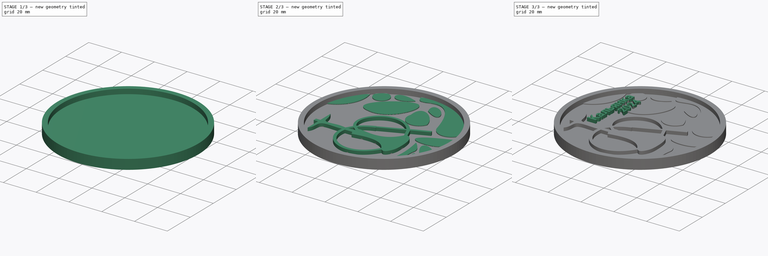
[diagram: build sequence overview — one tinted view per stage of 3, left to right]
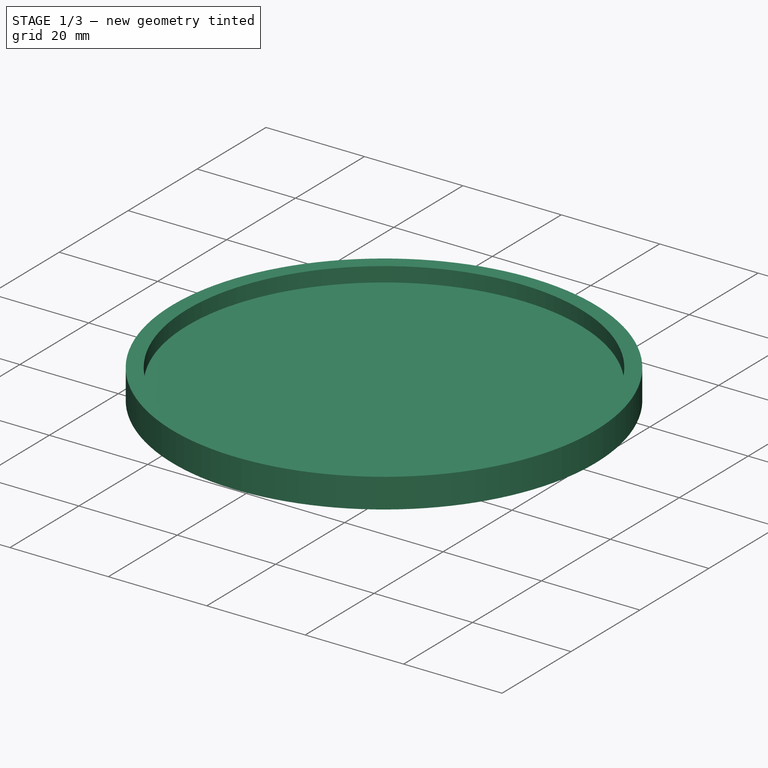
[diagram: stage 1 of 3 — iso view after this stage's code; geometry added in this stage tinted green]
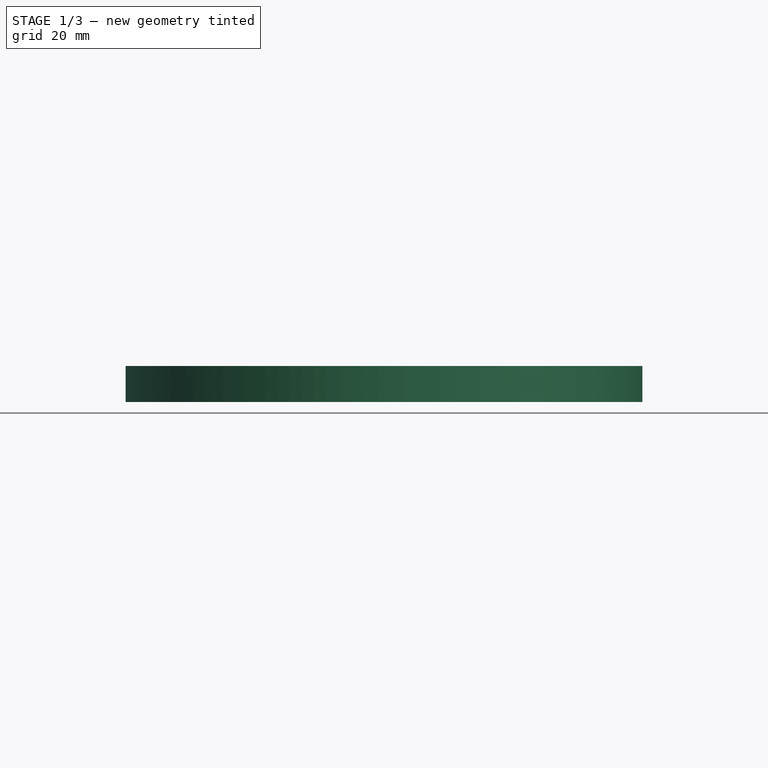
[diagram: stage 1 of 3 — front view after this stage's code; geometry added in this stage tinted green]
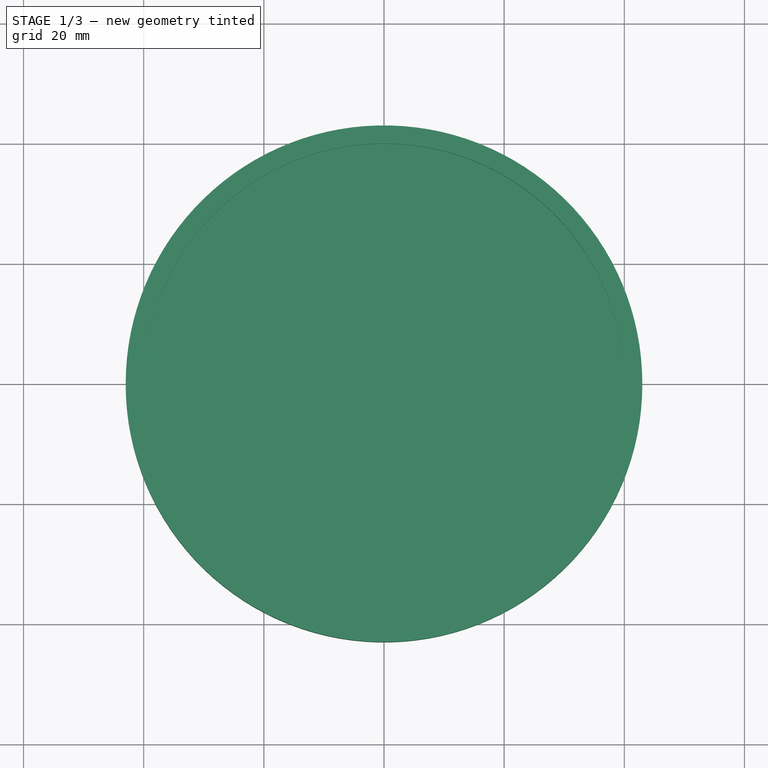
[diagram: stage 1 of 3 — top view after this stage's code; geometry added in this stage tinted green]
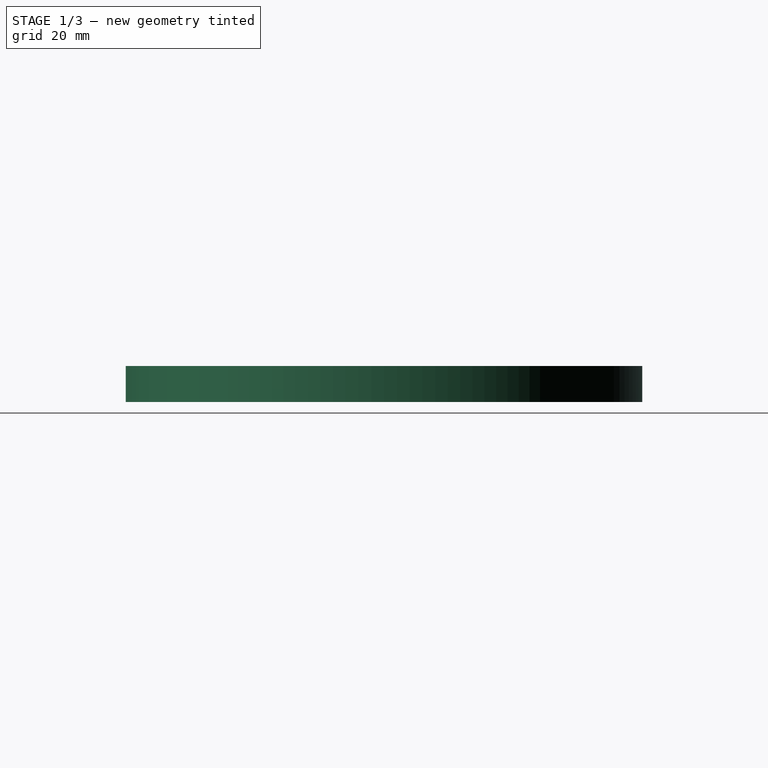
[diagram: stage 1 of 3 — right view after this stage's code; geometry added in this stage tinted green]
FCSTD DOCUMENT  (FreeCAD 0.21R33771 (Git))
Label: Медаль "Кольянка"
License: All rights reserved
LicenseURL: https://en.wikipedia.org/wiki/All_rights_reserved
objects: Sketcher::SketchObject×3, PartDesign::Pad×3, Part::Part2DObjectPython×2, Part::Extrusion×2, PartDesign::Thickness×1, PartDesign::Body×1, App::Part×1
note: 16 computed .brp shape members not serialized (recipe doc carries the construction recipe); baked Part::Feature solids carry a one-line shape summary decoded from their .brp

FEATURE [Sketcher::SketchObject] Sketch
  FullyConstrained = true
  MapMode = 5
  Support = -> [XY_Plane]
  sketch-geometry (1):
    g0: Circle CenterX=0 CenterY=0 CenterZ=0 NormalX=0 NormalY=0 NormalZ=1 AngleXU=0 Radius=40
  constraints (2):
    c: Coincident(g0,g-1)
    c: Diameter(g0) = 80
FEATURE [PartDesign::Pad] Pad
  Direction = (0,0,1)
  Length = 3
  Length2 = 10
  Profile = -> Sketch
  ReferenceAxis = -> Sketch [N_Axis]
  Type = 0
FEATURE [PartDesign::Thickness] Thickness
  Base = -> Pad [Face3]
  BaseFeature = -> Pad
  Intersection = false
  Join = 1
  Mode = 0
  SupportTransform = false
  Value = 3
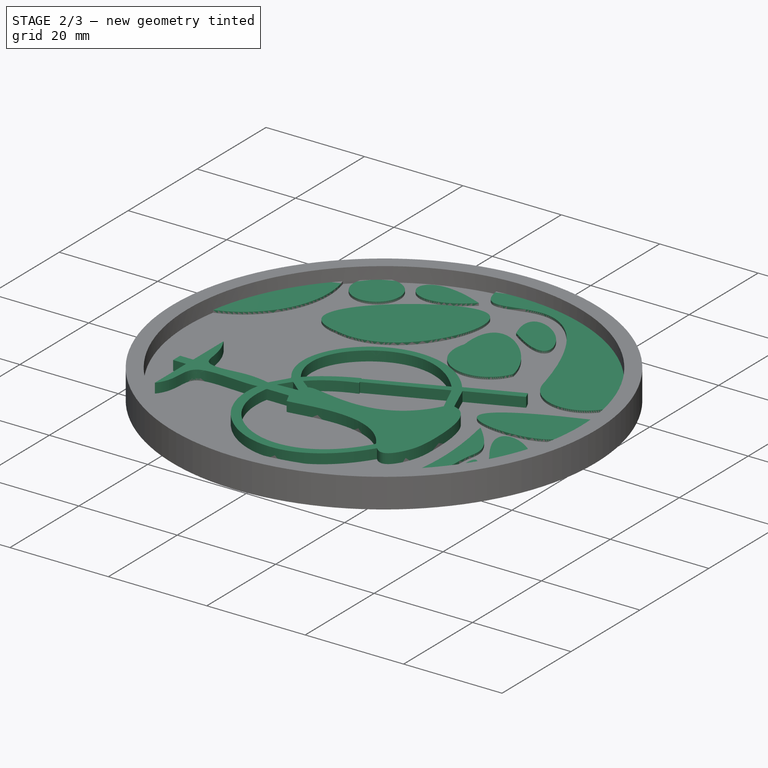
[diagram: stage 2 of 3 — iso view after this stage's code; geometry added in this stage tinted green]
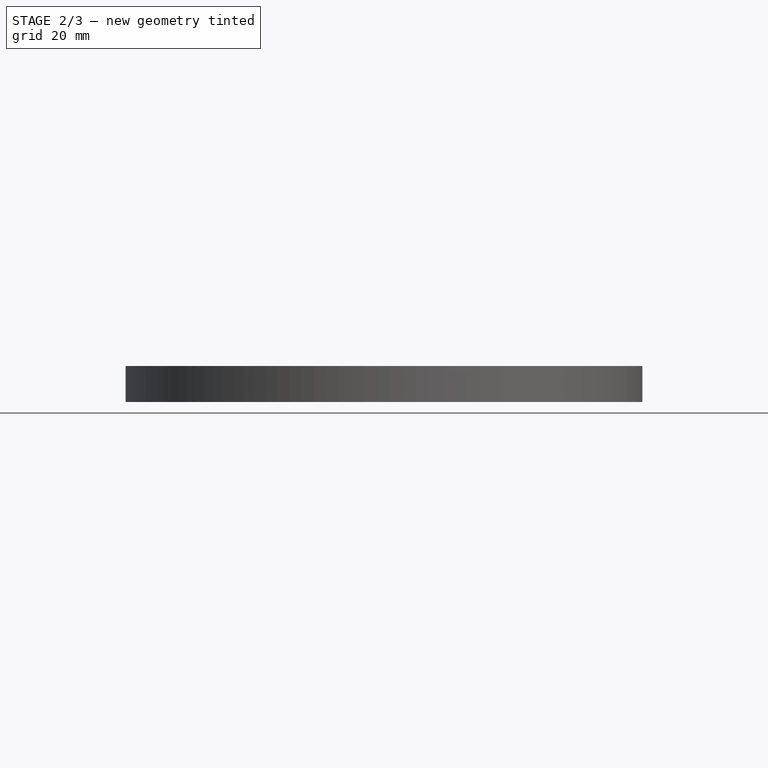
[diagram: stage 2 of 3 — front view after this stage's code; geometry added in this stage tinted green]
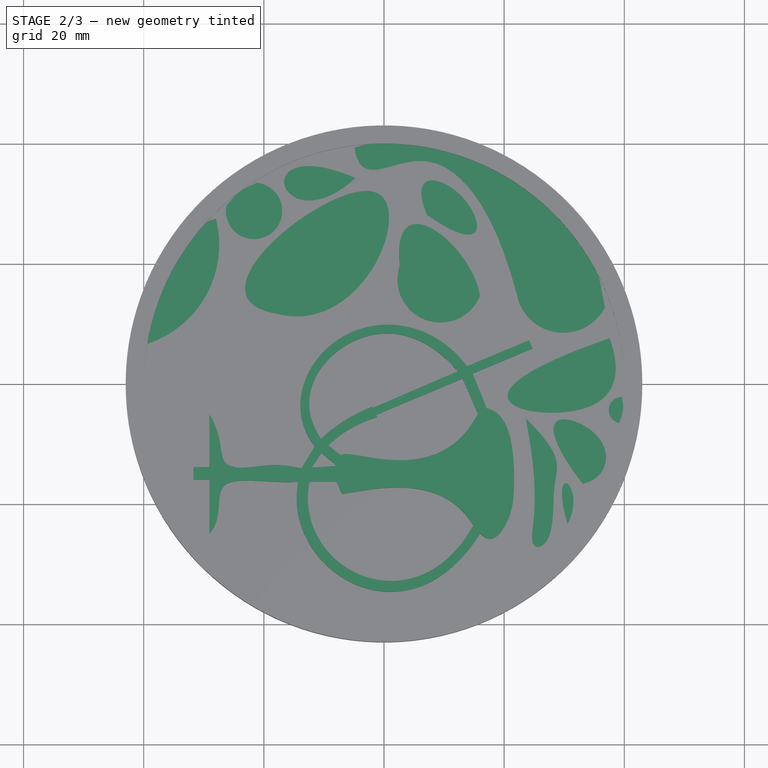
[diagram: stage 2 of 3 — top view after this stage's code; geometry added in this stage tinted green]
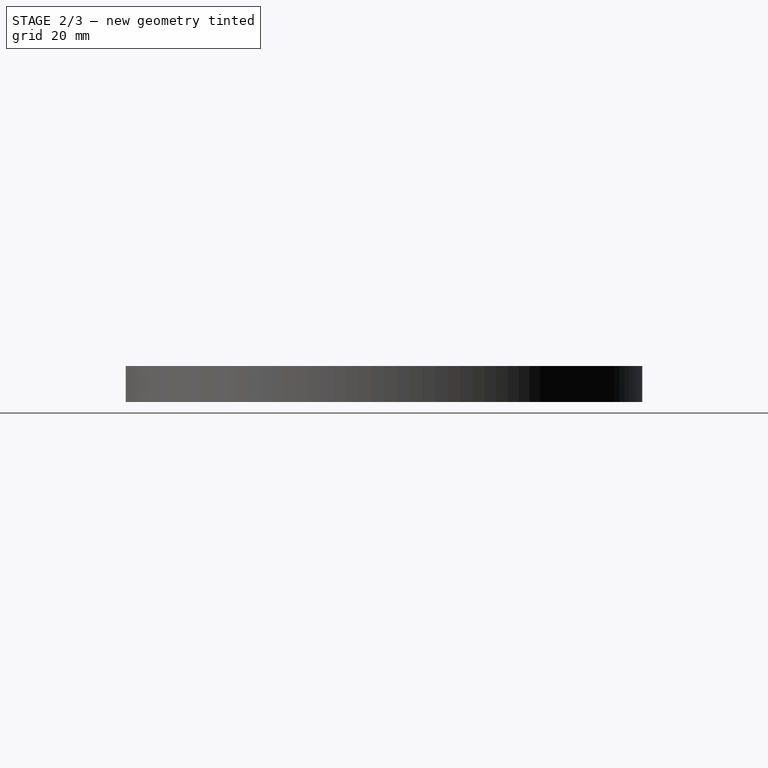
[diagram: stage 2 of 3 — right view after this stage's code; geometry added in this stage tinted green]
FEATURE [Sketcher::SketchObject] Sketch001
  FullyConstrained = false
  Placement = pos=(-4,-15,0) rot=(0,0,1;1.5708rad)
  Support = -> [XY_Plane]
  sketch-geometry (110):
    g0: LineSegment StartX=-9.98066 StartY=25.0733 StartZ=0 EndX=-0.911089 EndY=25.0733 EndZ=0
    g1: LineSegment StartX=-0.911089 StartY=25.0733 StartZ=0 EndX=-0.911089 EndY=27.7198 EndZ=0
    g2: LineSegment StartX=-0.911089 StartY=27.7198 StartZ=0 EndX=1.15018 EndY=27.7198 EndZ=0
    g3: LineSegment StartX=1.15018 StartY=27.7198 StartZ=0 EndX=1.15018 EndY=25.0733 EndZ=0
    g4: LineSegment StartX=1.15018 StartY=25.0733 StartZ=0 EndX=9.96209 EndY=25.0733 EndZ=0
    g5-g10: Circle x6 (B-spline internal-alignment scaffolding for g11; pole/knot coordinates omitted)
    g11: BSplineCurve PolesCount=6 KnotsCount=4 Degree=3 IsPeriodic=0
    g12-g15: GeomPoint x4 (B-spline internal-alignment scaffolding for g11; pole/knot coordinates omitted)
    g16: LineSegment StartX=17.9422 StartY=-17.8097 StartZ=0 EndX=22.2504 EndY=-28.1494 EndZ=0
    g17: LineSegment StartX=22.2504 StartY=-28.1494 StartZ=0 EndX=20.8929 EndY=-28.7434 EndZ=0
    g18: LineSegment StartX=20.8929 StartY=-28.7434 StartZ=0 EndX=16.7073 EndY=-18.7601 EndZ=0
    g19: LineSegment StartX=16.7073 StartY=-18.7601 StartZ=0 EndX=10.9283 EndY=-21.111 EndZ=0
    g20: LineSegment StartX=17.0938 StartY=-16.2632 StartZ=0 EndX=11.0131 EndY=-2.14349 EndZ=0
    g21: LineSegment StartX=11.0131 StartY=-2.14349 StartZ=0 EndX=11.2323 EndY=-2.03897 EndZ=0
    g22: LineSegment StartX=9.46994 StartY=-2.85719 StartZ=0 EndX=9.82692 EndY=-2.68646 EndZ=0
    g23: LineSegment StartX=9.82692 StartY=-2.68646 StartZ=0 EndX=15.8795 EndY=-17.0932 EndZ=0
    g24: Circle CenterX=11.2323 CenterY=-2.03897 CenterZ=0 NormalX=0 NormalY=0 NormalZ=1 AngleXU=0 Radius=1
    g25: Circle CenterX=9.06167 CenterY=3.21224 CenterZ=0 NormalX=0 NormalY=0 NormalZ=1 AngleXU=0 Radius=1
    g26: Circle CenterX=5.82942 CenterY=6.47292 CenterZ=0 NormalX=0 NormalY=0 NormalZ=1 AngleXU=0 Radius=1
    g27: BSplineCurve PolesCount=3 KnotsCount=2 Degree=2 IsPeriodic=0
    g28: GeomPoint X=11.2323 Y=-2.03897 Z=0
    g29: GeomPoint X=5.82942 Y=6.47292 Z=0
    g30-g34: Circle x5 (B-spline internal-alignment scaffolding for g35; pole/knot coordinates omitted)
    g35: BSplineCurve PolesCount=5 KnotsCount=3 Degree=3 IsPeriodic=0
    g36: GeomPoint X=5.82942 Y=6.47292 Z=0
    g37: GeomPoint X=21.5028 Y=2.14774 Z=0
    g38: GeomPoint X=17.0938 Y=-16.2632 Z=0
    g39: LineSegment StartX=0.944051 StartY=9.73526 StartZ=0 EndX=4.60261 EndY=7.54279 EndZ=0
    g40-g44: Circle x5 (B-spline internal-alignment scaffolding for g45; pole/knot coordinates omitted)
    g45: BSplineCurve PolesCount=5 KnotsCount=3 Degree=3 IsPeriodic=0
    g46: GeomPoint X=4.60261 Y=7.54279 Z=0
    g47: GeomPoint X=22.8589 Y=2.85681 Z=0
    g48: GeomPoint X=17.9422 Y=-17.8097 Z=0
    g49: LineSegment StartX=10.0292 StartY=-19.632 StartZ=0 EndX=15.8795 EndY=-17.0932 EndZ=0
    g50: LineSegment StartX=1.0717 StartY=8.04117 StartZ=0 EndX=1.35108 EndY=3.85048 EndZ=0
    g51: LineSegment StartX=1.35108 StartY=3.85048 StartZ=0 EndX=3.5085 EndY=6.42698 EndZ=0
    g52: LineSegment StartX=3.5085 StartY=6.42698 StartZ=0 EndX=1.0717 EndY=8.04117 EndZ=0
    g53: LineSegment StartX=3.12851 StartY=3.17142 StartZ=0 EndX=4.74054 EndY=5.26423 EndZ=0
    g54: Circle CenterX=4.74054 CenterY=5.26423 CenterZ=0 NormalX=0 NormalY=0 NormalZ=1 AngleXU=0 Radius=1
    g55: Circle CenterX=7.91947 CenterY=2.12245 CenterZ=0 NormalX=0 NormalY=0 NormalZ=1 AngleXU=0 Radius=1
    g56: Circle CenterX=9.46994 CenterY=-2.85719 CenterZ=0 NormalX=0 NormalY=0 NormalZ=1 AngleXU=0 Radius=1
    g57: BSplineCurve PolesCount=3 KnotsCount=2 Degree=2 IsPeriodic=0
    g58: GeomPoint X=4.74054 Y=5.26423 Z=0
    g59: GeomPoint X=9.46994 Y=-2.85719 Z=0
    g60-g63: Circle x4 (B-spline internal-alignment scaffolding for g64; pole/knot coordinates omitted)
    g64: BSplineCurve PolesCount=4 KnotsCount=2 Degree=3 IsPeriodic=0
    g65: GeomPoint X=3.12851 Y=3.17142 Z=0
    g66: GeomPoint X=10.0292 Y=-19.632 Z=0
    g67-g72: Circle x6 (B-spline internal-alignment scaffolding for g73; pole/knot coordinates omitted)
    g73: BSplineCurve PolesCount=6 KnotsCount=4 Degree=3 IsPeriodic=0
    g74-g77: GeomPoint x4 (B-spline internal-alignment scaffolding for g73; pole/knot coordinates omitted)
    g78-g81: Circle x4 (B-spline internal-alignment scaffolding for g82; pole/knot coordinates omitted)
    g82: BSplineCurve PolesCount=4 KnotsCount=2 Degree=3 IsPeriodic=0
    g83: GeomPoint X=-9.88606 Y=-20.0145 Z=0
    g84: GeomPoint X=-1.24877 Y=10.2685 Z=0
    g85-g88: Circle x4 (B-spline internal-alignment scaffolding for g89; pole/knot coordinates omitted)
    g89: BSplineCurve PolesCount=4 KnotsCount=2 Degree=3 IsPeriodic=0
    g90: GeomPoint X=-8.56845 Y=-18.8644 Z=0
    g91: GeomPoint X=-1.29823 Y=8.41803 Z=0
    g92: LineSegment StartX=-1.29823 StartY=8.41803 StartZ=0 EndX=-1.29823 EndY=3.92939 EndZ=0
    g93: LineSegment StartX=-3.29333 StartY=2.9784 StartZ=0 EndX=-1.29823 EndY=3.92939 EndZ=0
    g94-g97: Circle x4 (B-spline internal-alignment scaffolding for g98; pole/knot coordinates omitted)
    g98: BSplineCurve PolesCount=4 KnotsCount=2 Degree=3 IsPeriodic=0
    g99: GeomPoint X=-3.29333 Y=2.9784 Z=0
    g100: GeomPoint X=-8.56845 Y=-18.8644 Z=0
    g101-g105: Circle x5 (B-spline internal-alignment scaffolding for g106; pole/knot coordinates omitted)
    g106: BSplineCurve PolesCount=5 KnotsCount=3 Degree=3 IsPeriodic=0
    g107: GeomPoint X=-9.98066 Y=25.0733 Z=0
    g108: GeomPoint X=-1.65965 Y=22.172 Z=0
    g109: GeomPoint X=-1.24877 Y=10.2685 Z=0
  constraints (111):
    c: Horizontal(g0)
    c: Coincident(g0,g1)
    c: Vertical(g1)
    c: Coincident(g1,g2)
    c: Coincident(g2,g3)
    c: Coincident(g3,g4)
    c: Weight(g5) = 1
    c: Coincident(g11,g4)
    c: Equal(g5, g6-g10) x5
    c: InternalAlignment(g5-g10 -> g11) x6
    c: InternalAlignment(g12-g15 -> g11) x4
    c: Horizontal(g2)
    c: Vertical(g3)
    c: Horizontal(g0,g3)
    c: Horizontal(g4)
    c: Coincident(g16,g17)
    c: Coincident(g17,g18)
    c: Coincident(g18,g19)
    c: Coincident(g20,g21)
    c: Coincident(g23,g22)
    c: Weight(g24) = 1
    c: Coincident(g27,g21)
    c: Equal(g24,g25)
    c: Equal(g24,g26)
    c: InternalAlignment(g24,g27)
    c: InternalAlignment(g25,g27)
    c: InternalAlignment(g26,g27)
    c: InternalAlignment(g28,g27)
    c: InternalAlignment(g29,g27)
    c: Weight(g30) = 1
    c: Coincident(g35,g27)
    c: Equal(g30, g31-g34) x4
    c: Coincident(g35,g20)
    c: InternalAlignment(g30-g34 -> g35) x5
    c: InternalAlignment(g36,g35)
    c: InternalAlignment(g37,g35)
    c: InternalAlignment(g38,g35)
    c: Coincident(g39,g11)
    c: Weight(g40) = 1
    c: Coincident(g45,g39)
    c: Equal(g40, g41-g44) x4
    c: Coincident(g45,g16)
    c: InternalAlignment(g40-g44 -> g45) x5
    c: InternalAlignment(g46,g45)
    c: InternalAlignment(g47,g45)
    c: InternalAlignment(g48,g45)
    c: Coincident(g49,g23)
    c: Coincident(g50,g51)
    c: Coincident(g51,g52)
    c: Coincident(g52,g50)
    c: Weight(g54) = 1
    c: Coincident(g57,g53)
    c: Equal(g54,g55)
    c: Equal(g54,g56)
    c: Coincident(g57,g22)
    c: InternalAlignment(g54,g57)
    c: InternalAlignment(g55,g57)
    c: InternalAlignment(g56,g57)
    c: InternalAlignment(g58,g57)
    c: InternalAlignment(g59,g57)
    c: Weight(g60) = 1
    c: Coincident(g64,g53)
    c: Equal(g60,g61)
    c: Equal(g60,g62)
    c: Equal(g60,g63)
    c: Coincident(g64,g49)
    c: InternalAlignment(g60-g63 -> g64) x4
    c: InternalAlignment(g65,g64)
    c: InternalAlignment(g66,g64)
    c: Weight(g67) = 1
    c: Coincident(g73,g19)
    c: Equal(g67, g68-g72) x5
    c: InternalAlignment(g67-g72 -> g73) x6
    c: InternalAlignment(g74-g77 -> g73) x4
    c: PointOnObject(g75,g-2)
    c: Horizontal(g70,g68)
    c: Weight(g78) = 1
    c: Coincident(g82,g73)
    c: Equal(g78,g79)
    c: Equal(g78,g80)
    c: Equal(g78,g81)
    c: InternalAlignment(g78-g81 -> g82) x4
    c: InternalAlignment(g83,g82)
    c: InternalAlignment(g84,g82)
    c: Weight(g85) = 1
    c: Equal(g85,g86)
    c: Equal(g85,g87)
    c: Equal(g85,g88)
    c: InternalAlignment(g85-g88 -> g89) x4
    c: InternalAlignment(g90,g89)
    c: InternalAlignment(g91,g89)
    c: Coincident(g92,g89)
    c: Vertical(g92)
    c: Coincident(g93,g92)
    c: Weight(g94) = 1
    c: Coincident(g98,g93)
    c: Equal(g94,g95)
    c: Equal(g94,g96)
    c: Equal(g94,g97)
    c: Coincident(g98,g89)
    c: InternalAlignment(g94-g97 -> g98) x4
    c: InternalAlignment(g99,g98)
    c: InternalAlignment(g100,g98)
    c: Weight(g101) = 1
    c: Coincident(g106,g0)
    c: Equal(g101, g102-g105) x4
    c: Coincident(g106,g82)
    c: InternalAlignment(g101-g105 -> g106) x5
    c: InternalAlignment(g107,g106)
    c: InternalAlignment(g108,g106)
    c: InternalAlignment(g109,g106)
FEATURE [PartDesign::Pad] Pad001
  BaseFeature = -> Thickness
  Direction = (0,0,1)
  Length = 2
  Length2 = 10
  Profile = -> Sketch001
  ReferenceAxis = -> Sketch001 [N_Axis]
  Type = 0
FEATURE [Sketcher::SketchObject] Sketch002
  ExternalGeometry = -> [Pad001]
  FullyConstrained = false
  Support = -> [XY_Plane]
  sketch-geometry (89):
    g0: ArcOfCircle CenterX=-44.7926 CenterY=23.1941 CenterZ=0 NormalX=0 NormalY=0 NormalZ=1 AngleXU=0 Radius=17.3581 StartAngle=5.02599 EndAngle=6.58479
    g1-g5: Circle x5 (B-spline internal-alignment scaffolding for g6; pole/knot coordinates omitted)
    g6: BSplineCurve PolesCount=5 KnotsCount=3 Degree=3 IsPeriodic=0
    g7: GeomPoint X=-17.809 Y=11.6867 Z=0
    g8: GeomPoint X=-1.9232 Y=32.0413 Z=0
    g9: GeomPoint X=-17.809 Y=11.6867 Z=0
    g10: Circle CenterX=-21.6333 CenterY=28.8146 CenterZ=0 NormalX=0 NormalY=0 NormalZ=1 AngleXU=0 Radius=4.68923
    g11-g15: Circle x5 (B-spline internal-alignment scaffolding for g16; pole/knot coordinates omitted)
    g16: BSplineCurve PolesCount=5 KnotsCount=3 Degree=3 IsPeriodic=0
    g17: GeomPoint X=22.102 Y=15.0027 Z=0
    g18: GeomPoint X=6.53949 Y=37.1076 Z=0
    g19: GeomPoint X=-4.97247 Y=39.6897 Z=0
    g20: ArcOfCircle CenterX=9.38142 CenterY=17.3824 CenterZ=0 NormalX=0 NormalY=0 NormalZ=1 AngleXU=0 Radius=7.14514 StartAngle=2.81862 EndAngle=5.89018
    g21-g24: Circle x4 (B-spline internal-alignment scaffolding for g25; pole/knot coordinates omitted)
    g25: BSplineCurve PolesCount=4 KnotsCount=2 Degree=3 IsPeriodic=0
    g26: GeomPoint X=2.60571 Y=19.6501 Z=0
    g27: GeomPoint X=15.9818 Y=14.646 Z=0
    g28: ArcOfCircle CenterX=29.8235 CenterY=16.3694 CenterZ=0 NormalX=0 NormalY=0 NormalZ=1 AngleXU=0 Radius=7.84156 StartAngle=3.31677 EndAngle=5.80259
    g29: LineSegment StartX=36.7768 StartY=12.7442 StartZ=0 EndX=35.7722 EndY=17.8983 EndZ=0
    g30-g33: Circle x4 (B-spline internal-alignment scaffolding for g34; pole/knot coordinates omitted)
    g34: BSplineCurve PolesCount=4 KnotsCount=2 Degree=3 IsPeriodic=0
    g35: GeomPoint X=-4.74122 Y=34.3051 Z=0
    g36: GeomPoint X=-4.74122 Y=34.3051 Z=0
    g37-g41: Circle x5 (B-spline internal-alignment scaffolding for g42; pole/knot coordinates omitted)
    g42: BSplineCurve PolesCount=5 KnotsCount=3 Degree=3 IsPeriodic=0
    g43: GeomPoint X=7.1237 Y=28.1856 Z=0
    g44: GeomPoint X=13.2216 Y=30.9209 Z=0
    g45: GeomPoint X=7.1237 Y=28.1856 Z=0
    g46-g50: Circle x5 (B-spline internal-alignment scaffolding for g51; pole/knot coordinates omitted)
    g51: BSplineCurve PolesCount=5 KnotsCount=3 Degree=3 IsPeriodic=0
    g52: GeomPoint X=33.0745 Y=-16.6227 Z=0
    g53: GeomPoint X=34.756 Y=-7.96496 Z=0
    g54: GeomPoint X=33.0745 Y=-16.6227 Z=0
    g55-g58: Circle x4 (B-spline internal-alignment scaffolding for g59; pole/knot coordinates omitted)
    g59: BSplineCurve PolesCount=4 KnotsCount=2 Degree=3 IsPeriodic=0
    g60: GeomPoint X=30.5399 Y=-23.3336 Z=0
    g61: GeomPoint X=30.5399 Y=-23.3336 Z=0
    g62-g67: Circle x6 (B-spline internal-alignment scaffolding for g68; pole/knot coordinates omitted)
    g68: BSplineCurve PolesCount=6 KnotsCount=4 Degree=3 IsPeriodic=0
    g69-g72: GeomPoint x4 (B-spline internal-alignment scaffolding for g68; pole/knot coordinates omitted)
    g73-g79: Circle x7 (B-spline internal-alignment scaffolding for g80; pole/knot coordinates omitted)
    g80: BSplineCurve PolesCount=7 KnotsCount=5 Degree=3 IsPeriodic=0
    g81-g85: GeomPoint x5 (B-spline internal-alignment scaffolding for g80; pole/knot coordinates omitted)
    g86: Circle CenterX=39.5893 CenterY=-4.34041 CenterZ=0 NormalX=0 NormalY=0 NormalZ=1 AngleXU=0 Radius=2.18191
    g87: ArcOfCircle CenterX=0 CenterY=1.13e-14 CenterZ=0 NormalX=0 NormalY=0 NormalZ=1 AngleXU=0 Radius=40 StartAngle=0.463919 EndAngle=1.69543
    g88: ArcOfCircle CenterX=-9.1e-15 CenterY=0 CenterZ=0 NormalX=0 NormalY=0 NormalZ=1 AngleXU=0 Radius=40 StartAngle=2.35385 EndAngle=2.97374
  constraints (74):
    c: Weight(g1) = 1
    c: Equal(g1, g2-g5) x4
    c: Coincident(g6,g1)
    c: InternalAlignment(g1-g5 -> g6) x5
    c: InternalAlignment(g7,g6)
    c: InternalAlignment(g8,g6)
    c: InternalAlignment(g9,g6)
    c: Weight(g11) = 1
    c: Equal(g11, g12-g15) x4
    c: InternalAlignment(g11-g15 -> g16) x5
    c: InternalAlignment(g17,g16)
    c: InternalAlignment(g18,g16)
    c: InternalAlignment(g19,g16)
    c: Weight(g21) = 1
    c: Equal(g21,g22)
    c: Equal(g21,g23)
    c: Equal(g21,g24)
    c: Coincident(g25,g20)
    c: InternalAlignment(g21-g24 -> g25) x4
    c: InternalAlignment(g26,g25)
    c: InternalAlignment(g27,g25)
    c: Coincident(g20,g25)
    c: Coincident(g28,g16)
    c: Coincident(g29,g28)
    c: Weight(g30) = 1
    c: Equal(g30,g31)
    c: Equal(g30,g32)
    c: Equal(g30,g33)
    c: Coincident(g34,g30)
    c: InternalAlignment(g30-g33 -> g34) x4
    c: InternalAlignment(g35,g34)
    c: InternalAlignment(g36,g34)
    c: Weight(g37) = 1
    c: Equal(g37, g38-g41) x4
    c: Coincident(g42,g37)
    c: InternalAlignment(g37-g41 -> g42) x5
    c: InternalAlignment(g43,g42)
    c: InternalAlignment(g44,g42)
    c: InternalAlignment(g45,g42)
    c: Weight(g46) = 1
    c: Equal(g46, g47-g50) x4
    c: Coincident(g51,g46)
    c: InternalAlignment(g46-g50 -> g51) x5
    c: InternalAlignment(g52,g51)
    c: InternalAlignment(g53,g51)
    c: InternalAlignment(g54,g51)
    c: Weight(g55) = 1
    c: Equal(g55,g56)
    c: Equal(g55,g57)
    c: Equal(g55,g58)
    c: Coincident(g59,g55)
    c: InternalAlignment(g55-g58 -> g59) x4
    c: InternalAlignment(g60,g59)
    c: InternalAlignment(g61,g59)
    c: Weight(g62) = 1
    c: Equal(g62, g63-g67) x5
    c: Coincident(g68,g62)
    c: InternalAlignment(g62-g67 -> g68) x6
    c: InternalAlignment(g69-g72 -> g68) x4
    c: Weight(g73) = 1
    c: Equal(g73, g74-g79) x6
    c: Coincident(g80,g73)
    c: InternalAlignment(g73-g79 -> g80) x7
    c: InternalAlignment(g81-g85 -> g80) x5
    c: PointOnObject(g29,g-3)
    c: PointOnObject(g16,g-3)
    c: PointOnObject(g0,g-3)
    c: PointOnObject(g0,g-3)
    c: Coincident(g87,g16)
    c: Coincident(g87,g29)
    c: PointOnObject(g87,g-2)
    c: PointOnObject(g88,g-1)
    c: Coincident(g88,g0)
    c: Coincident(g88,g0)
FEATURE [PartDesign::Pad] Pad002
  BaseFeature = -> Pad001
  Direction = (0,0,1)
  Length = 0.5
  Length2 = 10
  Profile = -> Sketch002
  ReferenceAxis = -> Sketch002 [N_Axis]
  Type = 0
FEATURE [PartDesign::Body] Body
  Group = -> [Sketch,Pad,Thickness,Sketch001,Pad001,Sketch002,Pad002]
  Origin = -> Origin
  Tip = -> Pad002
FEATURE [App::Part] Part
  Group = -> [Body,ShapeString001,Extrude,ShapeString,Extrude001]
  Origin = -> Origin001
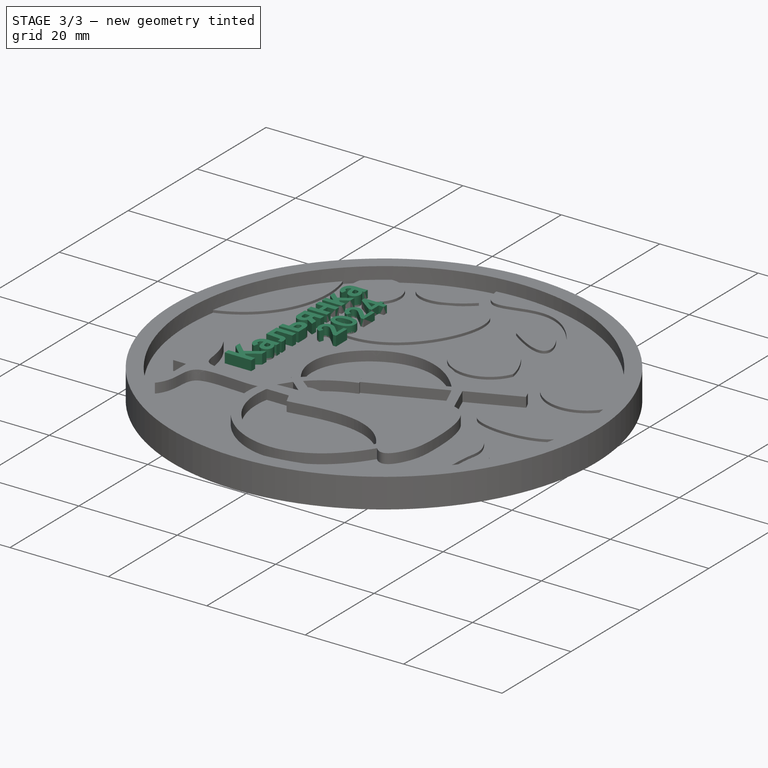
[diagram: stage 3 of 3 — iso view after this stage's code; geometry added in this stage tinted green]
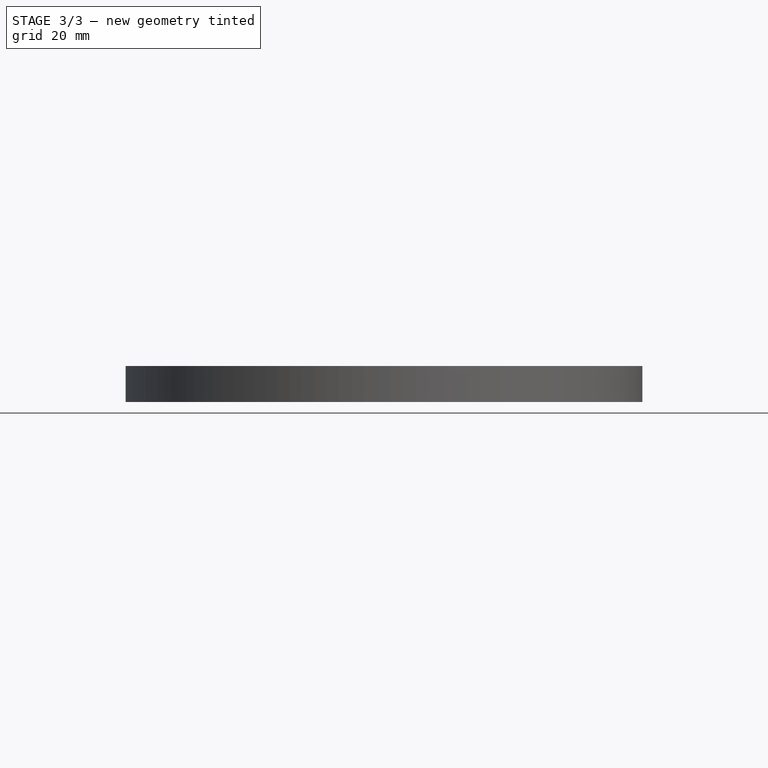
[diagram: stage 3 of 3 — front view after this stage's code; geometry added in this stage tinted green]
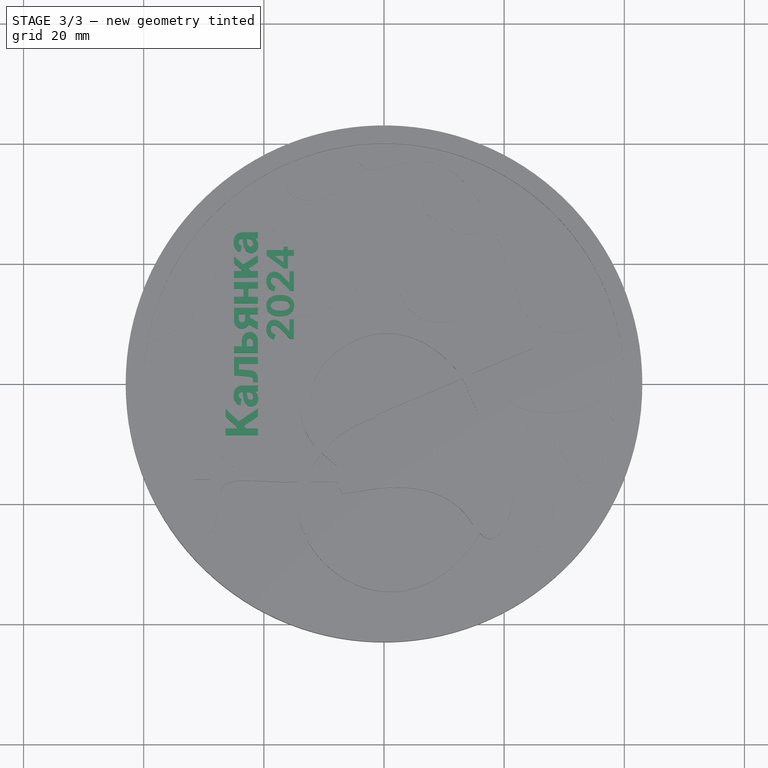
[diagram: stage 3 of 3 — top view after this stage's code; geometry added in this stage tinted green]
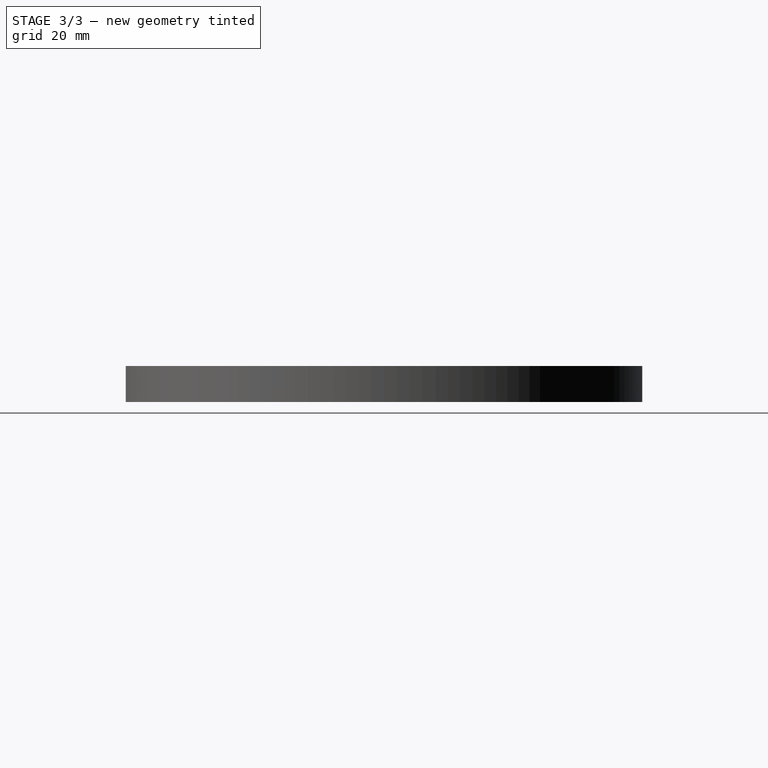
[diagram: stage 3 of 3 — right view after this stage's code; geometry added in this stage tinted green]
FEATURE [Part::Part2DObjectPython] ShapeString  # Draft 2D object (typed FeaturePython)
  FontFile = <userpath>/LTSuperior-Bold.otf
  MakeFace = true
  Placement = pos=(-21,-9,2) rot=(0,0,1;1.5708rad)
  Size = 2.5
  String = Кальянка
  Tracking = 0
FEATURE [Part::Part2DObjectPython] ShapeString001  # Draft 2D object (typed FeaturePython)
  FontFile = <userpath>/LTSuperior-Bold.otf
  MakeFace = true
  Placement = pos=(-15,7,1) rot=(0,0,1;1.5708rad)
  Size = 2.1
  String = 2024
  Tracking = 0
FEATURE [Part::Extrusion] Extrude
  Base = -> ShapeString001
  Dir = (0,0,1)
  DirMode = 2
  FaceMakerClass = Part::FaceMakerBullseye
  LengthFwd = 1
  LengthRev = 1
  Solid = false
  Symmetric = false
FEATURE [Part::Extrusion] Extrude001
  Base = -> ShapeString
  Dir = (0,0,1)
  DirMode = 2
  FaceMakerClass = Part::FaceMakerBullseye
  LengthFwd = 0
  LengthRev = 2
  Solid = false
  Symmetric = false
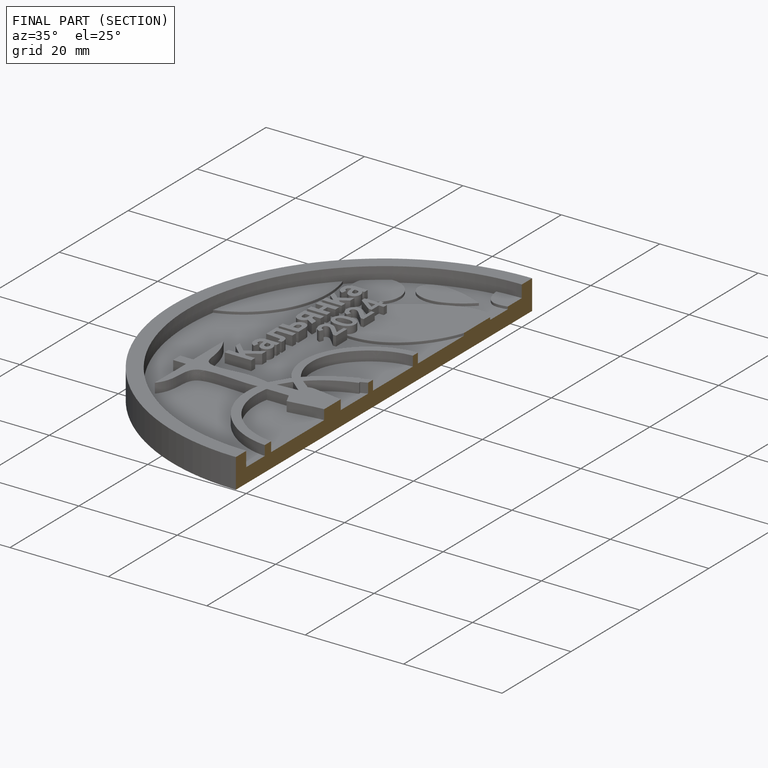
[diagram: finished part — half-section view (interior)]
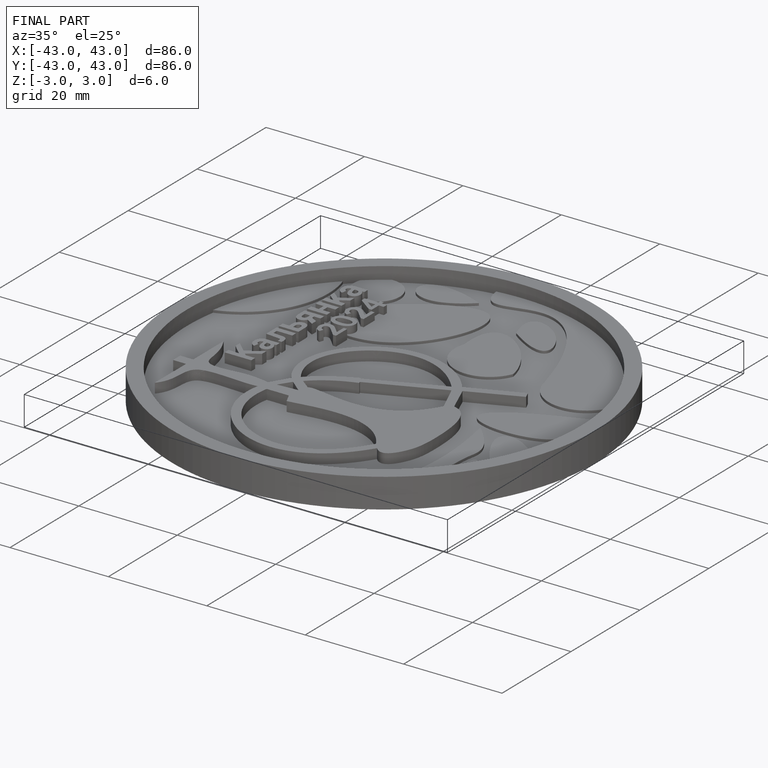
[diagram: finished part — iso view with bounding-box wireframe]
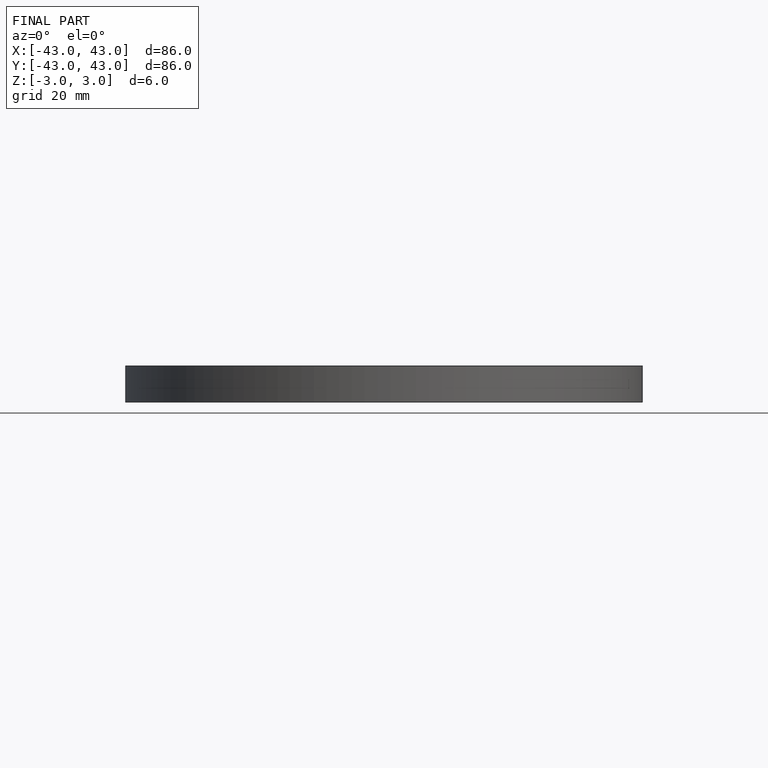
[diagram: finished part — front view with bounding-box wireframe]
